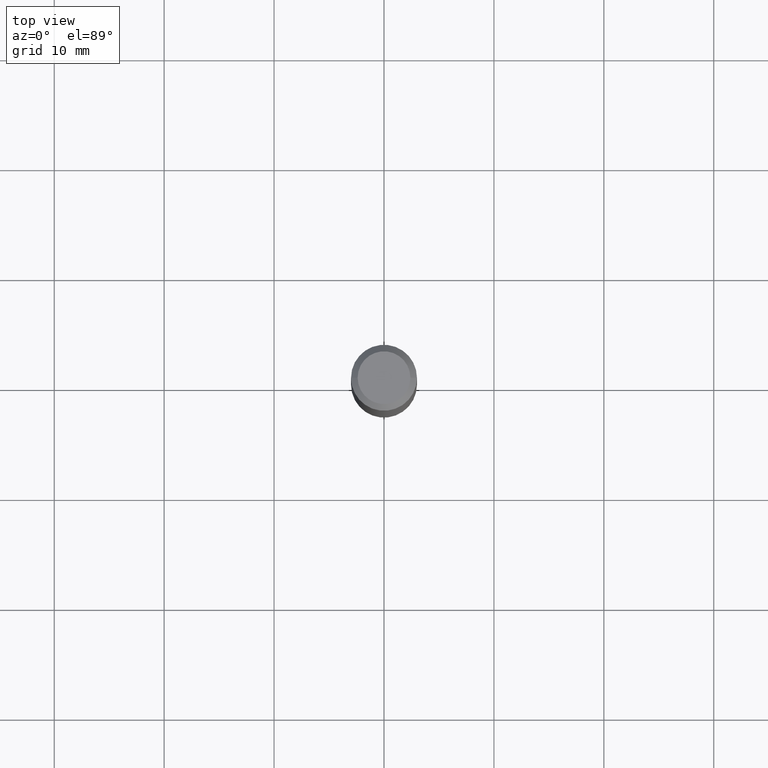
[diagram: clean part render]
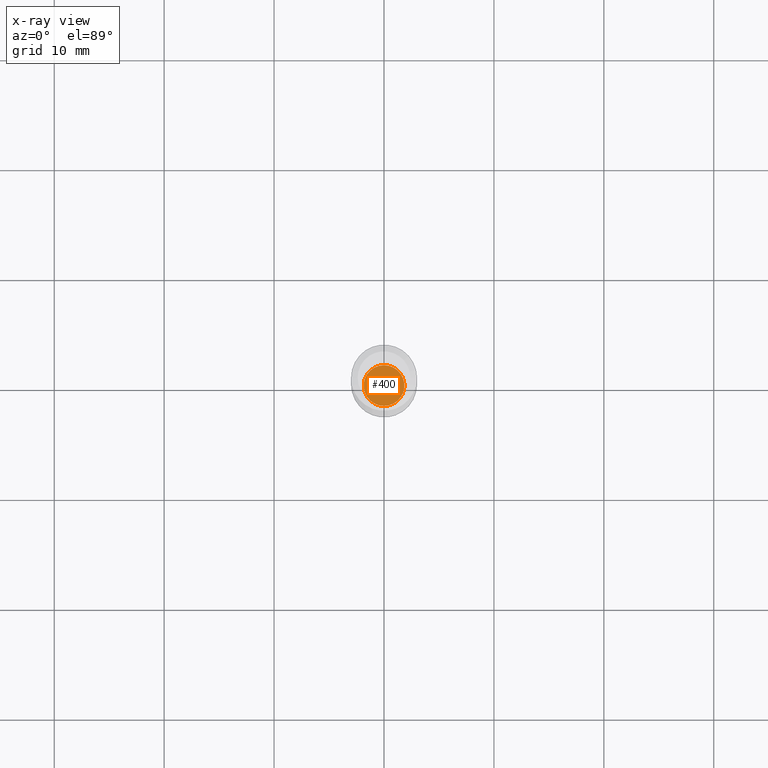
[diagram: x-ray — body ghosted, one internal face saturated and labeled with its STEP entity id]
A machine part, top view, then the same camera in x-ray: the body is ghosted and one INTERNAL B-rep face — a face not visible from any outside direction — is saturated and labeled: STEP entity #400.
In plain terms, the highlighted planar face has unit normal (0, -0, -1).
Its self-contained STEP definition (entity closure, byte-faithful):
#5 = AXIS2_PLACEMENT_3D ( 'NONE', #321, #136, #216 ) ;
#8 = DIRECTION ( 'NONE',  ( -6.982962677686265922E-15, -1.000000000000000000, 3.749962928845934523E-15 ) ) ;
#31 = AXIS2_PLACEMENT_3D ( 'NONE', #121, #426, #8 ) ;
#45 = CARTESIAN_POINT ( 'NONE',  ( 4.014726139114138019E-29, -5.731964913978790432E-15, -1.641699999999999493 ) ) ;
#65 = CARTESIAN_POINT ( 'NONE',  ( -5.087088310694042490E-16, -0.07285000000000572962, -1.641699999999999271 ) ) ;
#94 = AXIS2_PLACEMENT_3D ( 'NONE', #45, #198, #345 ) ;
#121 = CARTESIAN_POINT ( 'NONE',  ( 4.014726139114138019E-29, -5.731964913978790432E-15, -1.641699999999999493 ) ) ;
#136 = DIRECTION ( 'NONE',  ( 2.439545833910692296E-29, -3.499963372254795568E-15, -1.000000000000000000 ) ) ;
#198 = DIRECTION ( 'NONE',  ( -2.439545833910692576E-29, 3.499963372254795568E-15, 1.000000000000000000 ) ) ;
#206 = CIRCLE ( 'NONE', #31, 0.07284999999999999809 ) ;
#207 = CARTESIAN_POINT ( 'NONE',  ( 5.176303830012957849E-16, 0.07284999999999426656, -1.641699999999999937 ) ) ;
#216 = DIRECTION ( 'NONE',  ( 6.982962677686265922E-15, 1.000000000000000000, -3.499963372254795568E-15 ) ) ;
#220 = EDGE_LOOP ( 'NONE', ( #366, #357 ) ) ;
#289 = EDGE_CURVE ( 'NONE', #377, #438, #424, .T. ) ;
#299 = EDGE_CURVE ( 'NONE', #438, #377, #206, .T. ) ;
#321 = CARTESIAN_POINT ( 'NONE',  ( 4.014726139114138019E-29, -5.731964913978790432E-15, -1.641699999999999493 ) ) ;
#326 = PLANE ( 'NONE',  #5 ) ;
#345 = DIRECTION ( 'NONE',  ( -6.982962677686265922E-15, -1.000000000000000000, 3.749962928845934523E-15 ) ) ;
#357 = ORIENTED_EDGE ( 'NONE', *, *, #299, .T. ) ;
#366 = ORIENTED_EDGE ( 'NONE', *, *, #289, .T. ) ;
#377 = VERTEX_POINT ( 'NONE', #65 ) ;
#400 = ADVANCED_FACE ( 'NONE', ( #439 ), #326, .F. ) ;
#424 = CIRCLE ( 'NONE', #94, 0.07284999999999999809 ) ;
#426 = DIRECTION ( 'NONE',  ( -2.439545833910692576E-29, 3.499963372254795568E-15, 1.000000000000000000 ) ) ;
#438 = VERTEX_POINT ( 'NONE', #207 ) ;
#439 = FACE_OUTER_BOUND ( 'NONE', #220, .T. ) ;